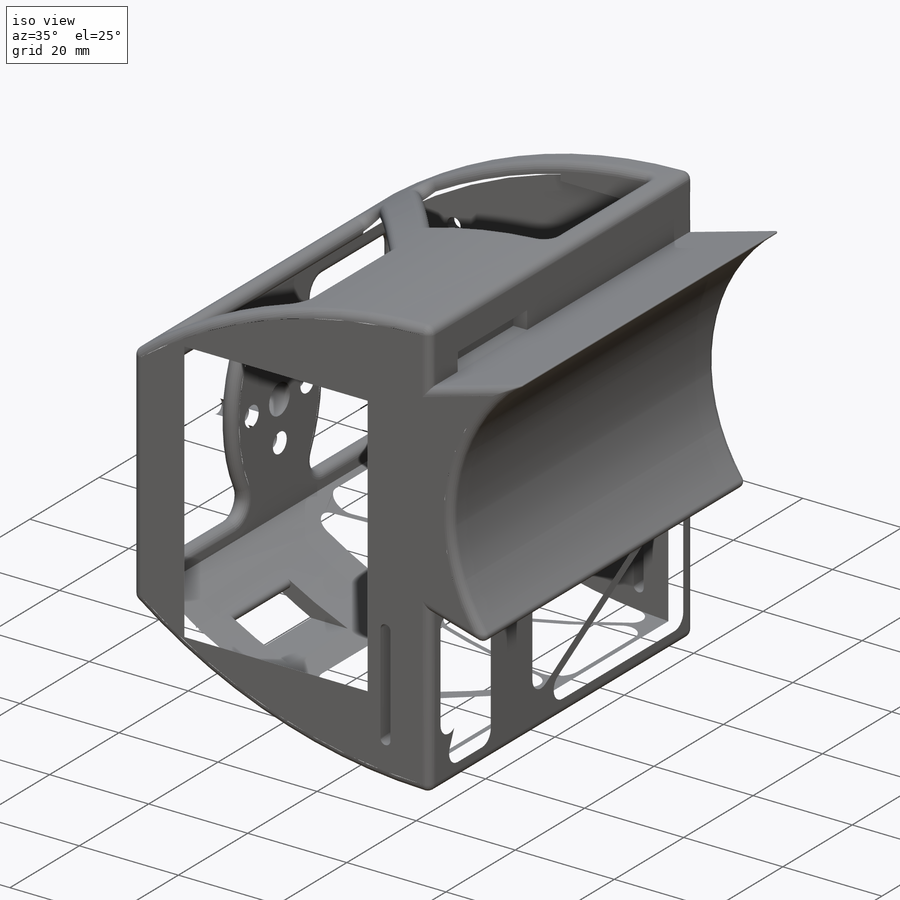
[diagram: iso view]
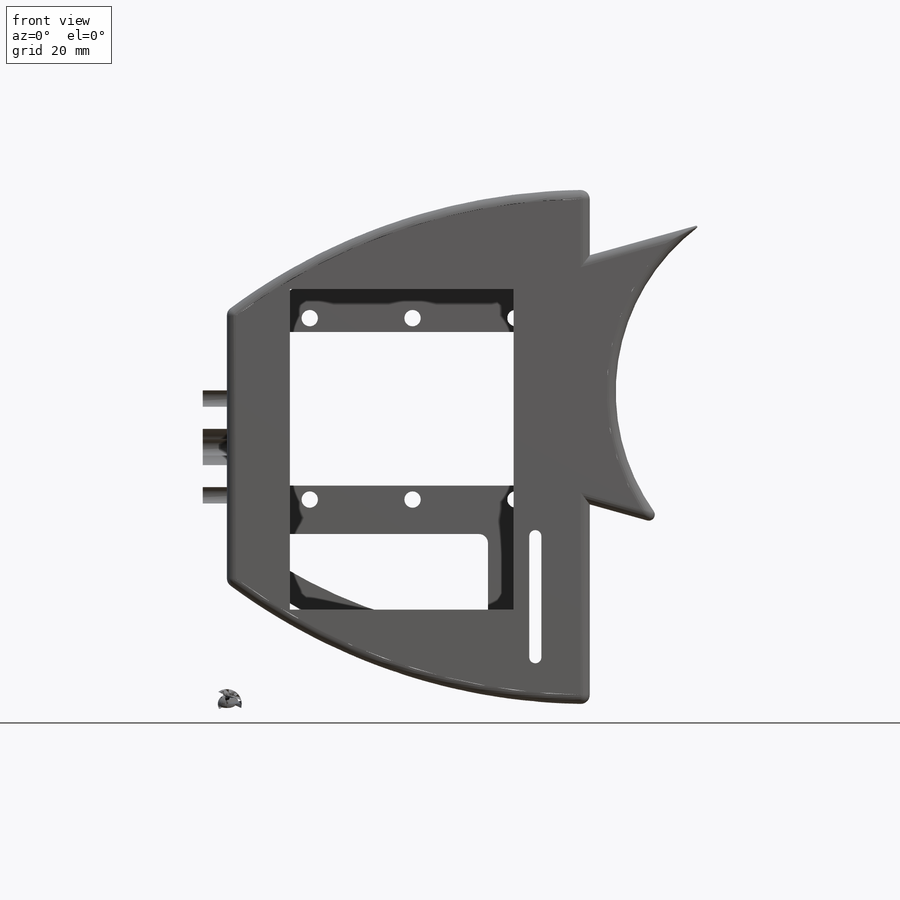
[diagram: front view]
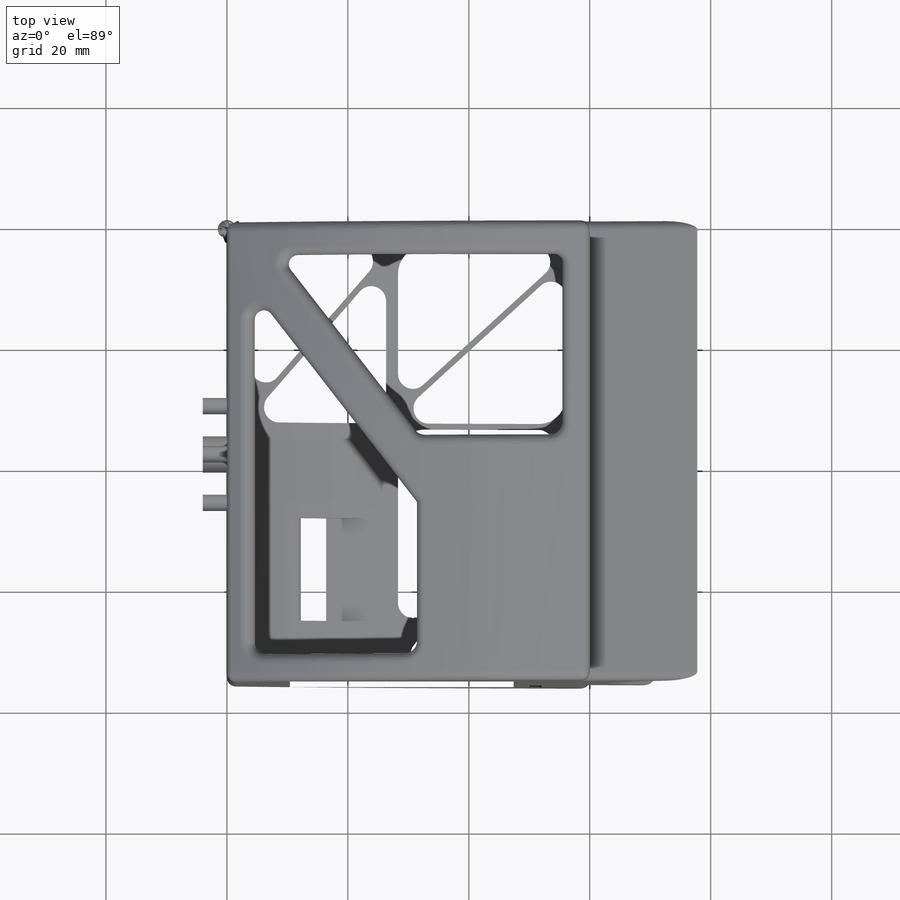
[diagram: top view]
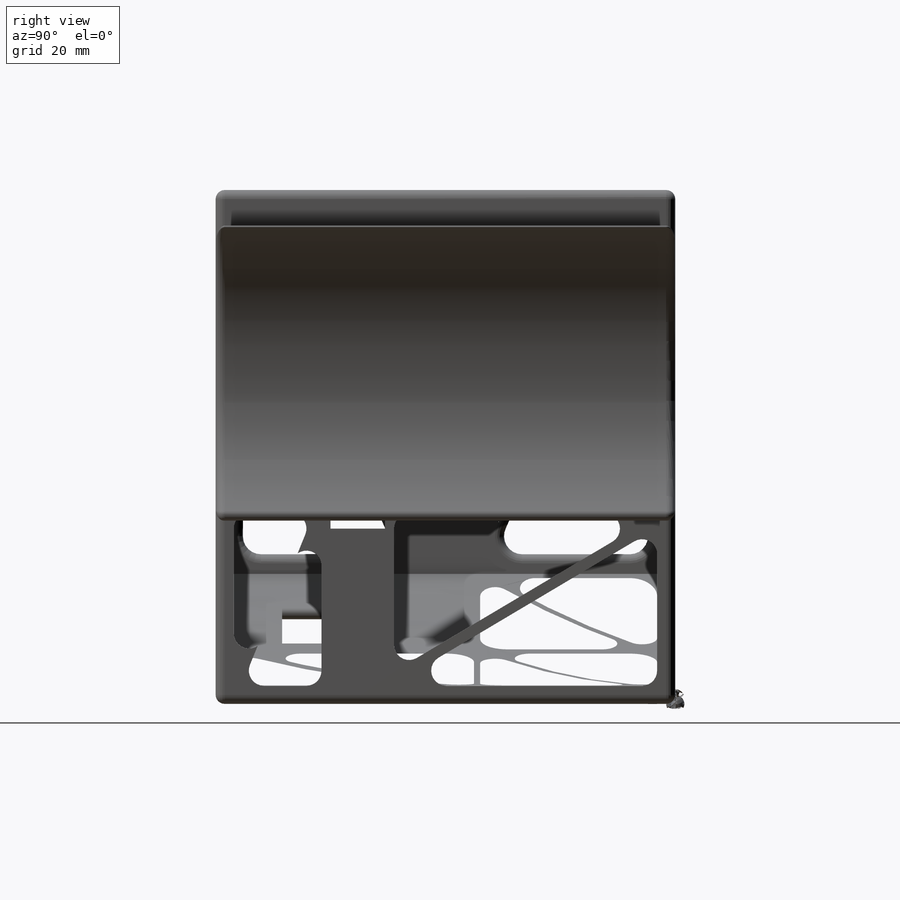
[diagram: right view]
SOLIDWORKS PART (.sldprt)
format: sldprt  version: not decoded by parser v0  size: 2,673,664 bytes
history: native  units: mm
features: sketch x24, cut_extrude x18, fillet x13, extrude x6, plane x5, pattern_linear x2, pattern_circular x2, material x1 (+10 scaffold rows collapsed)
feature tree (81):
  scaffold x10  (default folders/planes/origin — collapsed)
  material  "ABS"
  plane  "Plan de face"
  plane  "Plan de dessus"
  plane  "Plan de droite"
  sketch  "Esquisse1"  dims[c1.D3=100.0mm c1.D5=100.0mm c1.D1=60.0mm c1.D2=85.0mm c1.D4=20.0mm c1.D6=20.0mm c2.D2=85.0mm]
  extrude  "Boss.-Extru.1"  Depth=3mm
  sketch  "Esquisse2"  dims[D1=24.4mm D2=51.0mm D3=3.5mm D4=4.0mm]
  cut_extrude  "Enlèv. mat.-Extru.1"  Depth=3mm
  sketch  "Esquisse3"  dims[D1=2.7mm D2=2.8mm D3=6.8mm]
  cut_extrude  "Enlèv. mat.-Extru.2"  [1 undecoded]
  pattern_linear  "Répétition linéaire1"  Count1=3 Count2=2 Spacing1=17mm Spacing2=30mm
  sketch  "Esquisse4"  dims[D1=3.0mm]
  extrude  "Boss.-Extru.2"  Depth=70mm
  sketch  "Esquisse5"  dims[c1.D1=20.0mm c1.D2=20.0mm c2.D2=90.0deg c3.D2=15.0mm]
  extrude  "Boss.-Extru.3"  Depth=55mm
  sketch  "Esquisse7"  dims[c1.D7=~1.727897mm c1.D1=3.6mm c1.D2=19.0mm c1.D3=1.5mm c1.D4=5.0mm c1.D5=5.0mm c1.D6=5.0mm c2.D7=2.1mm c2.D1=19.0mm]
  cut_extrude  "Enlèv. mat.-Extru.3"  Depth=10mm
  sketch  "Esquisse9"  dims[D1=6.0mm D2=48.0mm D3=4.0mm]
  cut_extrude  "Enlèv. mat.-Extru.5"  Depth=30mm
  sketch  "Esquisse10"  dims[D1=4.0mm D2=9.0mm D3=0.0mm D4=33.0mm]
  cut_extrude  "Enlèv. mat.-Extru.6"  Depth=30mm
  sketch  "Esquisse11"
  extrude  "Boss.-Extru.4"  Depth=3mm
  sketch  "Esquisse8"  dims[c1.D1=20.0mm c1.D2=2.0mm c1.D3=5.0mm c1.D4=2.0mm c2.D4=90.0deg]
  cut_extrude  "Enlèv. mat.-Extru.4"  [1 undecoded]
  fillet  "Congé1"  Radius=1mm
  fillet  "Congé2"  Radius=1mm
  sketch  "Esquisse12"  dims[D1=~34.130689mm]
  extrude  "Boss.-Extru.5"  Depth=76mm
  fillet  "Congé3"  Radius=1mm
  fillet  "Congé4"  Radius=0.2mm
  sketch  "Esquisse13"  dims[D1=6.0mm D2=22.5mm D3=38.0mm]
  cut_extrude  "Enlèv. mat.-Extru.7"  Depth=3mm
  sketch  "Esquisse15"
  cut_extrude  "Enlèv. mat.-Extru.9"  Depth=12mm
  plane  "Plan2"  Offset=38mm
  sketch  "Esquisse18"
  cut_extrude  "Enlèv. mat.-Extru.10"  Depth=35mm
  fillet  "Congé6"  Radius=1.5mm
  sketch  "Esquisse19"  dims[c1.D13=30.0mm c1.D14=30.0mm c1.D7=3.0mm c1.D8=3.0mm c1.D1=4.0mm c1.D2=4.0mm c1.D3=3.0mm c1.D4=3.0mm c1.D5=4.0mm c1.D6=4.0mm c2.D7=6.0mm c2.D8=6.0mm c2.D9=6.0mm c2.D10=6.0mm c2.D11=1.5mm c2.D12=0.75mm c3.D9=20.0mm c3.D10=20.0mm c3.D11=10.0mm]
  cut_extrude  "Enlèv. mat.-Extru.11"  Depth=3mm
  fillet  "Congé7"  Radius=1.5mm
  plane  "Plan3"  Offset=88mm
  sketch  "Esquisse20"  dims[c1.D2=2.0mm c1.D3=2.0mm c1.D8=2.0mm c1.D13=2.0mm c1.D1=~79.525662mm c2.D1=0.0deg c2.D2=3.0mm c2.D3=3.0mm c2.D4=4.0mm c2.D5=3.0mm c2.D6=4.0mm c2.D7=3.0mm c2.D8=3.0mm c2.D9=~53.86802mm c3.D9=~52.377567deg c3.D10=~83.327999mm c4.D10=~37.622433deg c4.D11=69.0mm c5.D11=~37.622433deg c5.D12=~83.327999mm c6.D12=~52.377567deg c6.D2=7.0mm c6.D14=19.8mm c6.D15=~3.220911mm]
  cut_extrude  "Enlèv. mat.-Extru.12"  Depth=33mm
  fillet  "Congé8"  Radius=1.5mm
  fillet  "Congé9"  Radius=1mm
  sketch  "Esquisse21"  dims[D1=~11.013259mm]
  extrude  "Boss.-Extru.6"  Depth=4mm
  sketch  "Esquisse14"  dims[D1=2.7mm D2=8.0mm]
  cut_extrude  "Enlèv. mat.-Extru.8"  Depth=3mm
  pattern_circular  "Répétition circulaire1"  Count=4 Angle=90deg
  fillet  "Congé10"  Radius=1mm
  sketch  "Esquisse22"  dims[c1.D21=3.0mm c1.D22=1.0mm c1.D1=5.0mm c1.D2=30.0mm c1.D3=3.0mm c1.D4=30.0mm c1.D5=4.0mm c1.D6=1.0mm c1.D7=1.0mm c1.D8=0.0mm c1.D9=0.0mm c1.D10=~27.874643mm c2.D10=~177.121445deg c3.D10=~27.874643mm c4.D10=360.0deg c4.D11=4.0mm c5.D10=3.0mm c5.D12=4.0mm c5.D13=1.0mm c5.D14=1.0mm c5.D15=4.0mm c5.D16=0.0mm c5.D17=5.0mm c5.D18=1.0mm c5.D19=1.0mm c5.D20=4.0mm]
  cut_extrude  "Enlèv. mat.-Extru.13"  Depth=21mm
  fillet  "Congé12"  Radius=1.5mm ModelUUID=0mm UUID=0mm
  sketch  "Esquisse23"  dims[D1=36.0mm D2=52.0mm]
  cut_extrude  "Enlèv. mat.-Extru.14"  Depth=3mm
  fillet  "Congé13"  Radius=0.5mm
  sketch  "Esquisse24"  dims[c1.D1=2.0mm c1.D2=1.0mm c2.D1=9.0mm]
  cut_extrude  "Enlèv. mat.-Extru.15"  Depth=3mm
  fillet  "Congé14"  Radius=0.5mm
  sketch  "Esquisse25"  dims[c1.D9=1.0mm c1.D10=1.0mm c1.D1=3.0mm c1.D2=3.0mm c1.D3=3.0mm c1.D4=3.0mm c1.D5=3.0mm c1.D6=3.0mm c1.D7=3.0mm c1.D8=3.0mm c2.D9=4.0mm c2.D10=3.5mm c2.D11=3.5mm c2.D12=~37.051627mm c3.D9=3.5mm c3.D12=3.5mm c3.D10=2.0mm c3.D11=2.0mm c4.D12=2.0mm c4.D13=2.0mm]
  cut_extrude  "Enlèv. mat.-Extru.16"  Depth=3mm
  fillet  "Congé15"  Radius=1.5mm
  sketch  "Esquisse26"  dims[D1=4.0mm]
  cut_extrude  "Enlèv. mat.-Extru.17"  Depth=1mm
  pattern_linear  "Répétition linéaire2"  Count1=3 Count2=2 Spacing1=17mm Spacing2=30mm
  sketch  "Esquisse27"  dims[D1=4.0mm]
  cut_extrude  "Enlèv. mat.-Extru.18"  Depth=1.5mm
  pattern_circular  "Répétition circulaire2"  Count=4 Angle=90deg
decode coverage: 60 of 65 modeling features carry decoded parameters
note: ~ marks probable driven/reference dimensions
note: 2 parameter values undecoded
note: suppression state not decoded; provenance and decode notes live in map.json
